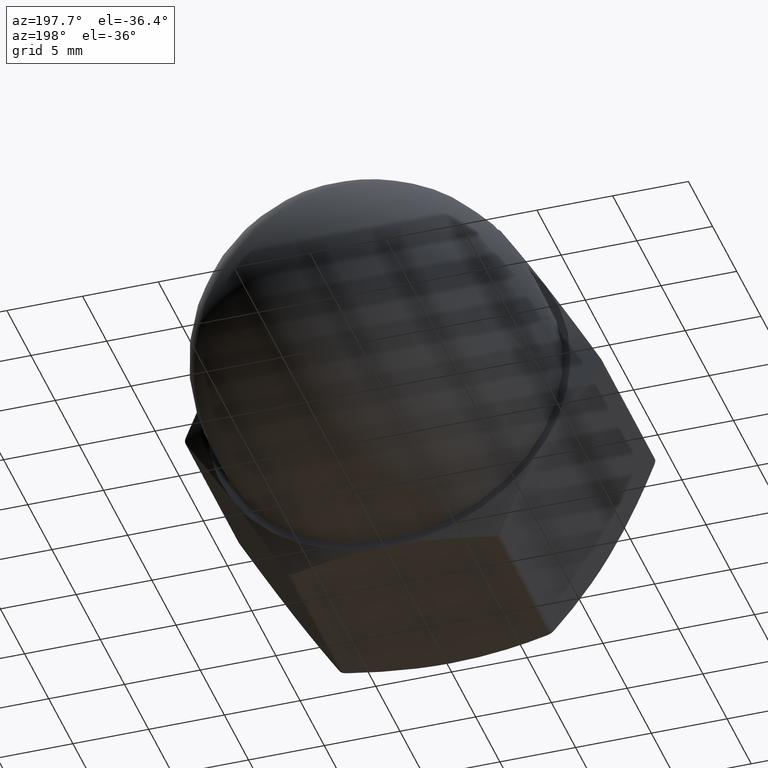
[diagram: clean part render]
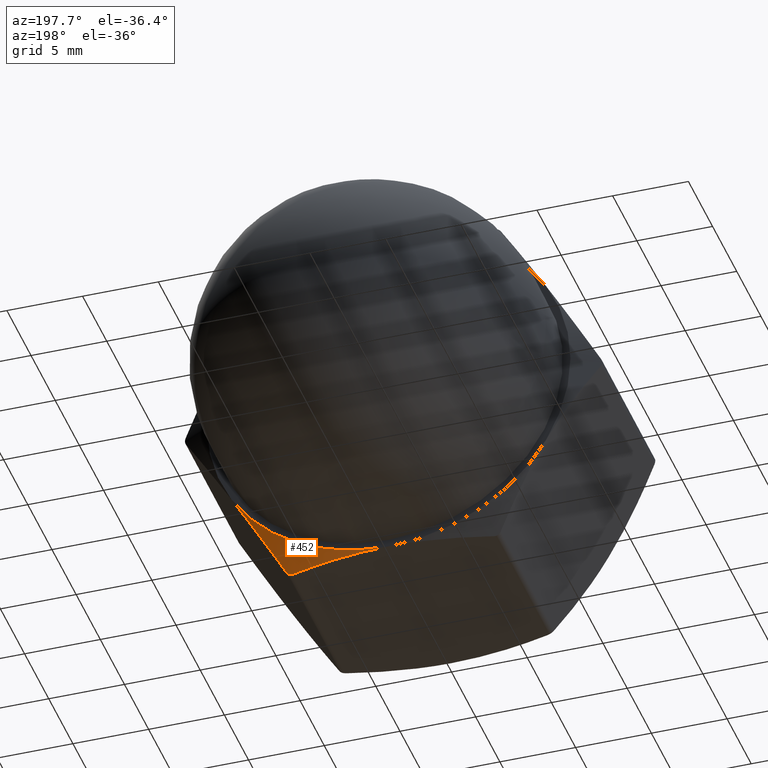
[diagram: same view with one face highlighted and labeled with its STEP entity id]
A machine part, auxiliary view. The second image highlights one B-rep face of the part: STEP entity #452.
In plain terms, the highlighted conical surface has half-angle 60 deg.
Its self-contained STEP definition (entity closure, byte-faithful):
#20 = CARTESIAN_POINT ( 'NONE',  ( 2.250940326994607300, 12.88654657712218400, -12.00000000000000000 ) ) ;
#33 = CARTESIAN_POINT ( 'NONE',  ( 5.564852187614544500, 12.31060636774459900, -12.00000000000000200 ) ) ;
#38 = CARTESIAN_POINT ( 'NONE',  ( 10.39230484541326400, 13.00000000000000000, -6.000000000000004400 ) ) ;
#56 = CARTESIAN_POINT ( 'NONE',  ( 8.990347189129828100, 12.82002802009278000, -8.428261890743083700 ) ) ;
#95 = FACE_OUTER_BOUND ( 'NONE', #847, .T. ) ;
#119 = ORIENTED_EDGE ( 'NONE', *, *, #554, .T. ) ;
#122 = ORIENTED_EDGE ( 'NONE', *, *, #343, .T. ) ;
#137 = VERTEX_POINT ( 'NONE', #1201 ) ;
#162 = CARTESIAN_POINT ( 'NONE',  ( 10.11082040635886900, 13.00000000000001100, -6.487545349982230600 ) ) ;
#163 = CARTESIAN_POINT ( 'NONE',  ( 7.072540797572910000, 12.01022088346239000, -11.74999999999999800 ) ) ;
#180 = CARTESIAN_POINT ( 'NONE',  ( 8.161051184807723400, 12.56206301313893200, -9.864644704742834900 ) ) ;
#186 = DIRECTION ( 'NONE',  ( 0.0000000000000000000, 0.0000000000000000000, -1.000000000000000000 ) ) ;
#189 = EDGE_CURVE ( 'NONE', #911, #617, #774, .T. ) ;
#245 = CARTESIAN_POINT ( 'NONE',  ( 7.072540797572910000, 12.01022088346239000, -11.74999999999999800 ) ) ;
#256 = CARTESIAN_POINT ( 'NONE',  ( 6.725391467499123100, 11.98622098699853900, -12.00000000000000000 ) ) ;
#259 = CARTESIAN_POINT ( 'NONE',  ( 4.476170215682653700, 12.55945454350330500, -12.00000000000000000 ) ) ;
#297 = CARTESIAN_POINT ( 'NONE',  ( 7.072540797572910000, 12.01022088346239000, -11.74999999999999800 ) ) ;
#343 = EDGE_CURVE ( 'NONE', #137, #911, #526, .T. ) ;
#351 = CARTESIAN_POINT ( 'NONE',  ( 2.812232842606244200, 12.81897280971901800, -11.99999999999999600 ) ) ;
#452 = ADVANCED_FACE ( 'NONE', ( #95 ), #1273, .T. ) ;
#465 = CARTESIAN_POINT ( 'NONE',  ( 0.5605972413833034700, 13.00000000000000200, -12.00000000000000000 ) ) ;
#468 = CARTESIAN_POINT ( 'NONE',  ( 6.639528095680689500, 12.01022088346239000, -12.00000000000000000 ) ) ;
#509 = CARTESIAN_POINT ( 'NONE',  ( 6.639528095680689500, 12.01022088346239000, -12.00000000000000000 ) ) ;
#526 = CIRCLE ( 'NONE', #1218, 12.00000000000000200 ) ;
#554 = EDGE_CURVE ( 'NONE', #923, #137, #749, .T. ) ;
#578 = DIRECTION ( 'NONE',  ( 0.0000000000000000000, 0.0000000000000000000, -1.000000000000000000 ) ) ;
#617 = VERTEX_POINT ( 'NONE', #163 ) ;
#666 = CARTESIAN_POINT ( 'NONE',  ( 7.029625122902114500, 11.98622993768510800, -11.82433212897091400 ) ) ;
#667 = CARTESIAN_POINT ( 'NONE',  ( 6.639528095680689500, 12.01022088346239000, -12.00000000000000000 ) ) ;
#671 = CARTESIAN_POINT ( 'NONE',  ( 0.0000000000000000000, 11.92820323027552500, 0.0000000000000000000 ) ) ;
#695 = CARTESIAN_POINT ( 'NONE',  ( 7.614553384551759200, 12.31321960559746000, -10.81120666101079300 ) ) ;
#749 = B_SPLINE_CURVE_WITH_KNOTS ( 'NONE', 3,
 ( #667, #33, #259, #351, #20, #1077, #465, #1182 ),
 .UNSPECIFIED., .F., .F.,
 ( 4, 2, 2, 4 ),
 ( 0.005378634189493568600, 0.008726149205378655800, 0.01039990671332119800, 0.01207366422126374100 ),
 .UNSPECIFIED. ) ;
#753 = AXIS2_PLACEMENT_3D ( 'NONE', #671, #880, #578 ) ;
#774 = B_SPLINE_CURVE_WITH_KNOTS ( 'NONE', 3,
 ( #38, #162, #1005, #802, #56, #180, #695, #297 ),
 .UNSPECIFIED., .F., .F.,
 ( 4, 2, 2, 4 ),
 ( 0.007010445034807147300, 0.008682192066603523100, 0.01035393909839989700, 0.01369743316199265000 ),
 .UNSPECIFIED. ) ;
#802 = CARTESIAN_POINT ( 'NONE',  ( 9.268373994161443400, 12.88676039513641700, -7.946705338562272100 ) ) ;
#818 = DIRECTION ( 'NONE',  ( -0.0000000000000000000, -1.000000000000000000, -0.0000000000000000000 ) ) ;
#823 = CARTESIAN_POINT ( 'NONE',  ( 10.39230484541326400, 13.00000000000000000, -6.000000000000004400 ) ) ;
#847 = EDGE_LOOP ( 'NONE', ( #1255, #1196, #119, #122 ) ) ;
#880 = DIRECTION ( 'NONE',  ( -0.0000000000000000000, -1.000000000000000000, -0.0000000000000000000 ) ) ;
#911 = VERTEX_POINT ( 'NONE', #823 ) ;
#923 = VERTEX_POINT ( 'NONE', #509 ) ;
#1005 = CARTESIAN_POINT ( 'NONE',  ( 9.828025114344676200, 12.97678812667749800, -6.977361163892085800 ) ) ;
#1021 = CARTESIAN_POINT ( 'NONE',  ( 0.0000000000000000000, 13.00000000000000000, 0.0000000000000000000 ) ) ;
#1026 = B_SPLINE_CURVE_WITH_KNOTS ( 'NONE', 3,
 ( #245, #666, #1101, #1195, #256, #468 ),
 .UNSPECIFIED., .F., .F.,
 ( 4, 2, 4 ),
 ( 1.939479807224432100E-018, 0.0002638430375139699500, 0.0005276860750279379400 ),
 .UNSPECIFIED. ) ;
#1077 = CARTESIAN_POINT ( 'NONE',  ( 1.122912357192195500, 12.97720845569012800, -12.00000000000000200 ) ) ;
#1101 = CARTESIAN_POINT ( 'NONE',  ( 6.966193649169807300, 11.97290585221489300, -11.88865763218903200 ) ) ;
#1182 = CARTESIAN_POINT ( 'NONE',  ( -1.502314598737160000E-015, 13.00000000000000000, -12.00000000000000200 ) ) ;
#1195 = CARTESIAN_POINT ( 'NONE',  ( 6.813644986382255000, 11.97281723302417900, -11.97691555569886100 ) ) ;
#1196 = ORIENTED_EDGE ( 'NONE', *, *, #1244, .T. ) ;
#1201 = CARTESIAN_POINT ( 'NONE',  ( -1.502314598737160000E-015, 13.00000000000000000, -12.00000000000000200 ) ) ;
#1218 = AXIS2_PLACEMENT_3D ( 'NONE', #1021, #818, #186 ) ;
#1244 = EDGE_CURVE ( 'NONE', #617, #923, #1026, .T. ) ;
#1255 = ORIENTED_EDGE ( 'NONE', *, *, #189, .T. ) ;
#1273 = CONICAL_SURFACE ( 'NONE', #753, 13.85640646055101900, 1.047197551196603800 ) ;